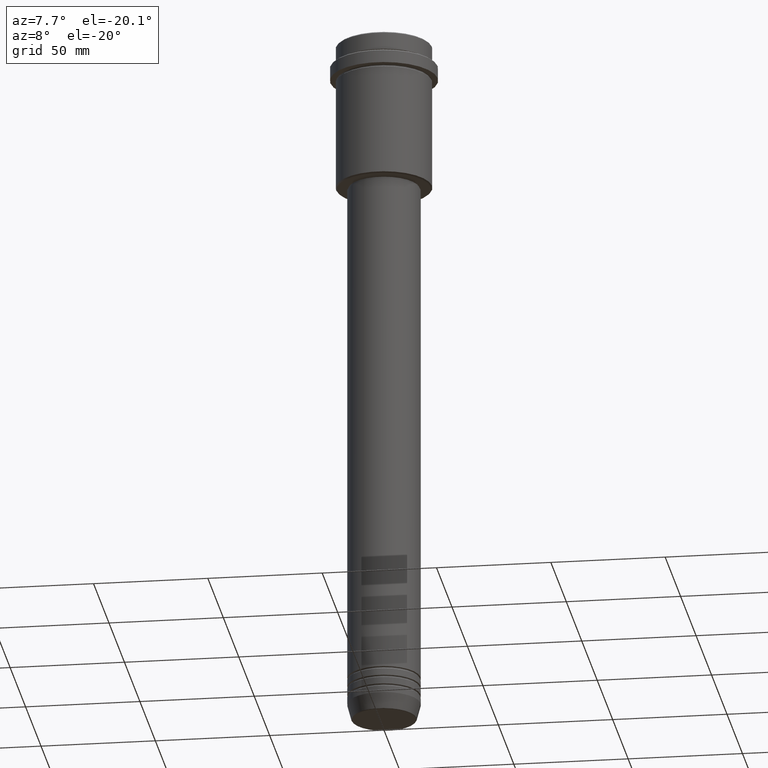
[diagram: clean part render]
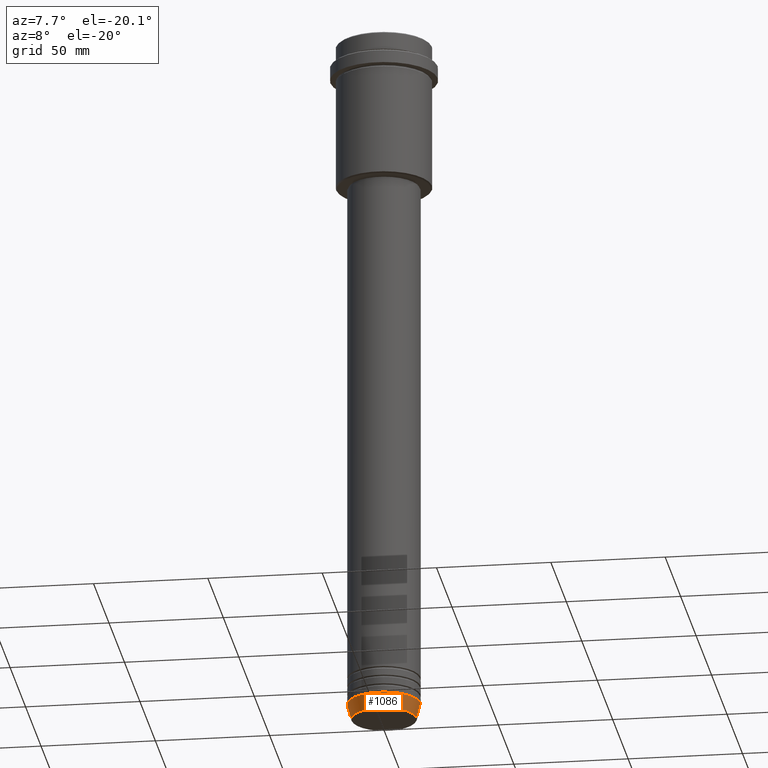
[diagram: same view with one face highlighted and labeled with its STEP entity id]
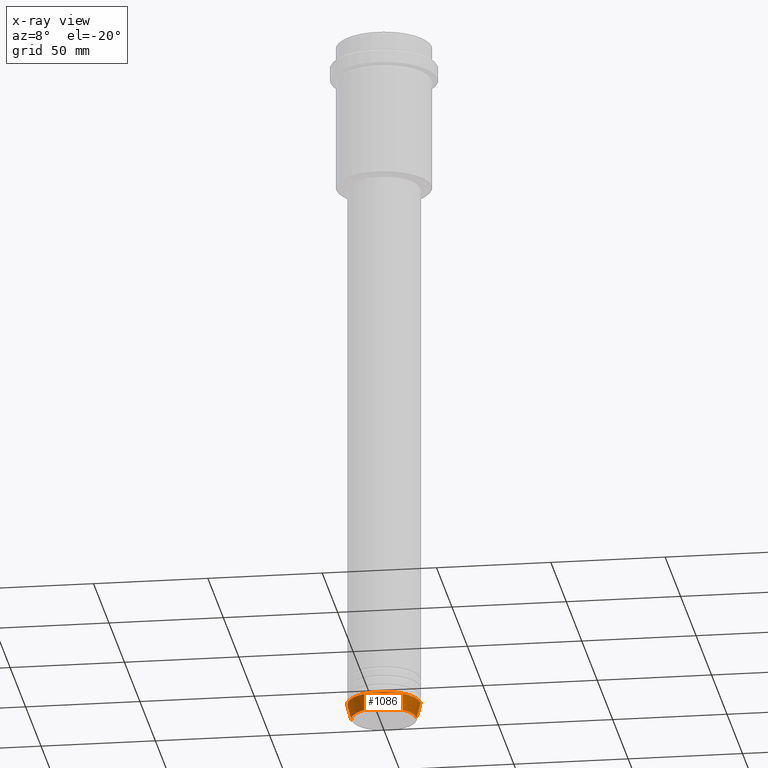
[diagram: x-ray of the same camera — body ghosted, the highlighted face saturated]
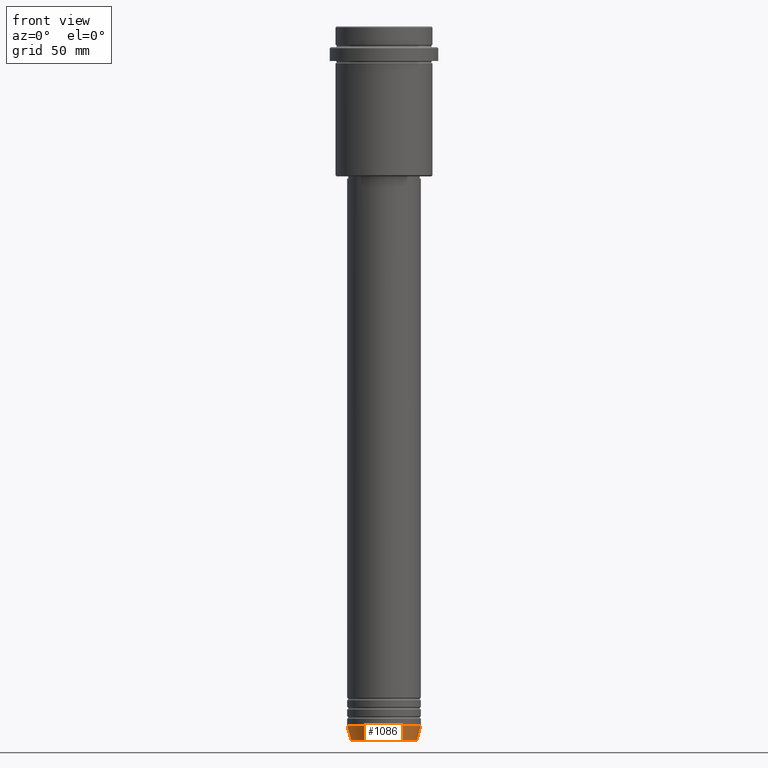
[diagram: same view with one face highlighted and labeled with its STEP entity id]
A machine part, auxiliary view. The second image highlights one B-rep face of the part: STEP entity #1086.
The next image is the same camera in x-ray: the body ghosted, the highlighted face saturated — about 0% of this face is hidden behind the body in this view.
A second angle (front view) of the same face is appended — the face is thin or edge-on in the first view.
In plain terms, the highlighted conical surface has half-angle 15 deg.
Its self-contained STEP definition (entity closure, byte-faithful):
#18 = CARTESIAN_POINT ( 'NONE',  ( -16.00000000000000000, 1.959434878635765131E-15, -303.0000000000000000 ) ) ;
#27 = DIRECTION ( 'NONE',  ( -0.000000000000000000, -0.000000000000000000, 1.000000000000000000 ) ) ;
#29 = ORIENTED_EDGE ( 'NONE', *, *, #1294, .T. ) ;
#39 = DIRECTION ( 'NONE',  ( -0.2588190451025213501, 3.169619151431772337E-17, 0.9659258262890680902 ) ) ;
#82 = AXIS2_PLACEMENT_3D ( 'NONE', #506, #380, #1058 ) ;
#124 = CARTESIAN_POINT ( 'NONE',  ( 0.000000000000000000, 0.000000000000000000, -303.0000000000000000 ) ) ;
#134 = ORIENTED_EDGE ( 'NONE', *, *, #1153, .F. ) ;
#154 = DIRECTION ( 'NONE',  ( 0.2588190451025213501, 0.000000000000000000, 0.9659258262890680902 ) ) ;
#200 = DIRECTION ( 'NONE',  ( -0.000000000000000000, -0.000000000000000000, 1.000000000000000000 ) ) ;
#220 = CARTESIAN_POINT ( 'NONE',  ( 16.00000000000000000, 0.000000000000000000, -303.0000000000000000 ) ) ;
#269 = EDGE_LOOP ( 'NONE', ( #783, #29, #860, #134 ) ) ;
#352 = VECTOR ( 'NONE', #154, 1000.000000000000000 ) ;
#355 = CARTESIAN_POINT ( 'NONE',  ( -16.00000000000000000, 1.959434878635765131E-15, -303.0000000000000000 ) ) ;
#380 = DIRECTION ( 'NONE',  ( -0.000000000000000000, -0.000000000000000000, 1.000000000000000000 ) ) ;
#506 = CARTESIAN_POINT ( 'NONE',  ( 0.000000000000000000, 0.000000000000000000, -309.6294095225512706 ) ) ;
#534 = VECTOR ( 'NONE', #39, 1000.000000000000000 ) ;
#580 = LINE ( 'NONE', #18, #534 ) ;
#628 = DIRECTION ( 'NONE',  ( 1.000000000000000000, 0.000000000000000000, 0.000000000000000000 ) ) ;
#677 = AXIS2_PLACEMENT_3D ( 'NONE', #960, #200, #628 ) ;
#718 = AXIS2_PLACEMENT_3D ( 'NONE', #124, #27, #1322 ) ;
#765 = EDGE_CURVE ( 'NONE', #1324, #1248, #580, .T. ) ;
#783 = ORIENTED_EDGE ( 'NONE', *, *, #765, .F. ) ;
#860 = ORIENTED_EDGE ( 'NONE', *, *, #927, .T. ) ;
#927 = EDGE_CURVE ( 'NONE', #1254, #1196, #1363, .T. ) ;
#934 = CARTESIAN_POINT ( 'NONE',  ( -14.22365507213718772, 1.850665122131323337E-15, -309.6294095225512706 ) ) ;
#960 = CARTESIAN_POINT ( 'NONE',  ( 0.000000000000000000, 0.000000000000000000, -303.0000000000000000 ) ) ;
#1010 = CARTESIAN_POINT ( 'NONE',  ( 14.22365507213718772, 0.000000000000000000, -309.6294095225512706 ) ) ;
#1058 = DIRECTION ( 'NONE',  ( 1.000000000000000000, 0.000000000000000000, 0.000000000000000000 ) ) ;
#1081 = FACE_OUTER_BOUND ( 'NONE', #269, .T. ) ;
#1086 = ADVANCED_FACE ( 'NONE', ( #1081 ), #1288, .T. ) ;
#1130 = CIRCLE ( 'NONE', #718, 16.00000000000000000 ) ;
#1153 = EDGE_CURVE ( 'NONE', #1248, #1196, #1130, .T. ) ;
#1196 = VERTEX_POINT ( 'NONE', #220 ) ;
#1227 = CARTESIAN_POINT ( 'NONE',  ( 16.00000000000000000, 0.000000000000000000, -303.0000000000000000 ) ) ;
#1248 = VERTEX_POINT ( 'NONE', #355 ) ;
#1254 = VERTEX_POINT ( 'NONE', #1010 ) ;
#1288 = CONICAL_SURFACE ( 'NONE', #677, 16.00000000000000000, 0.2617993877991500740 ) ;
#1294 = EDGE_CURVE ( 'NONE', #1324, #1254, #1317, .T. ) ;
#1317 = CIRCLE ( 'NONE', #82, 14.22365507213718772 ) ;
#1322 = DIRECTION ( 'NONE',  ( 1.000000000000000000, 0.000000000000000000, 0.000000000000000000 ) ) ;
#1324 = VERTEX_POINT ( 'NONE', #934 ) ;
#1363 = LINE ( 'NONE', #1227, #352 ) ;